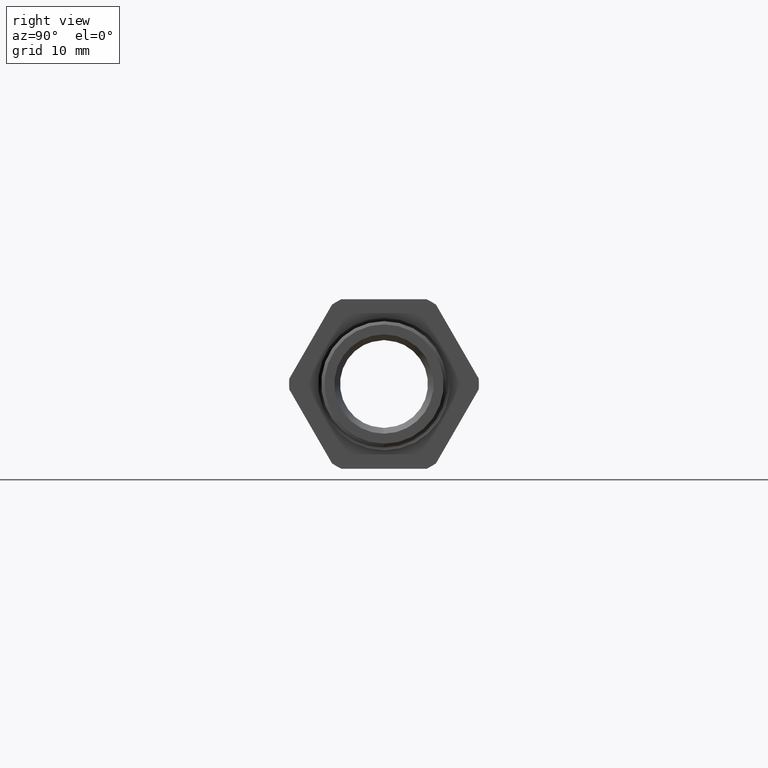
[diagram: clean part render]
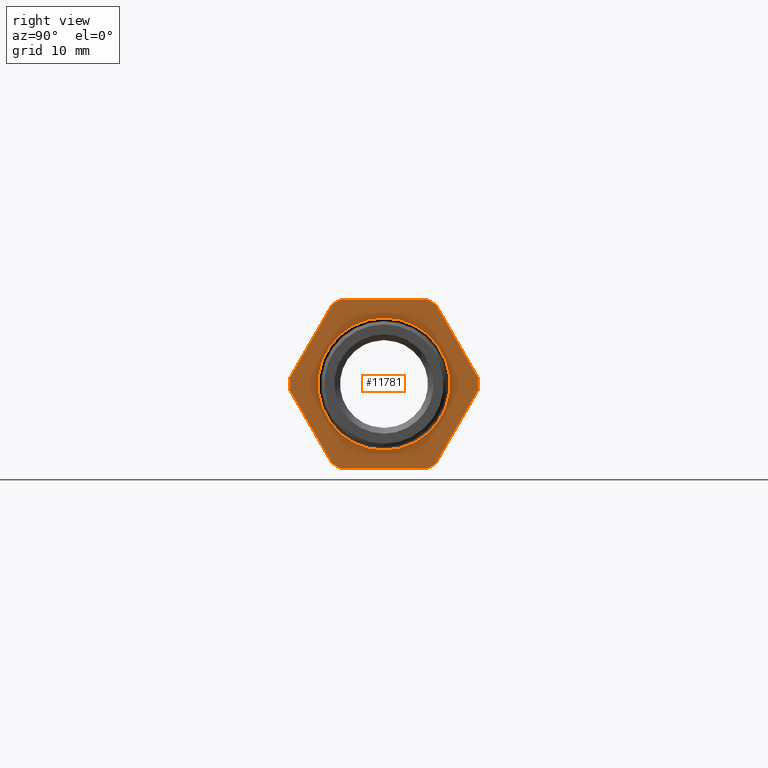
[diagram: same view with one face highlighted and labeled with its STEP entity id]
A machine part, right view. The second image highlights one B-rep face of the part: STEP entity #11781.
In plain terms, the highlighted planar face has unit normal (-1, 0, 0).
Its self-contained STEP definition (entity closure, byte-faithful):
#126 = EDGE_CURVE ( 'NONE', #206, #131, #1429, .T. ) ;
#131 = VERTEX_POINT ( 'NONE', #1424 ) ;
#206 = VERTEX_POINT ( 'NONE', #1459 ) ;
#233 = EDGE_CURVE ( 'NONE', #131, #206, #1450, .T. ) ;
#1424 = CARTESIAN_POINT ( 'NONE',  ( 7.329259376520189700E-017, 5.062129959158587600E-017, -0.4133542799999999600 ) ) ;
#1425 = DIRECTION ( 'NONE',  ( 0.0000000000000000000, 0.0000000000000000000, 1.000000000000000000 ) ) ;
#1426 = DIRECTION ( 'NONE',  ( -1.000000000000000000, 0.0000000000000000000, 0.0000000000000000000 ) ) ;
#1427 = CARTESIAN_POINT ( 'NONE',  ( 7.329259376520189700E-017, 0.0000000000000000000, 0.0000000000000000000 ) ) ;
#1428 = AXIS2_PLACEMENT_3D ( 'NONE', #1427, #1426, #1425 ) ;
#1429 = CIRCLE ( 'NONE', #1428, 0.4133542799999999600 ) ;
#1447 = DIRECTION ( 'NONE',  ( 0.0000000000000000000, 0.0000000000000000000, 1.000000000000000000 ) ) ;
#1448 = DIRECTION ( 'NONE',  ( -1.000000000000000000, 0.0000000000000000000, 0.0000000000000000000 ) ) ;
#1449 = AXIS2_PLACEMENT_3D ( 'NONE', #1455, #1448, #1447 ) ;
#1450 = CIRCLE ( 'NONE', #1449, 0.4133542799999999600 ) ;
#1455 = CARTESIAN_POINT ( 'NONE',  ( 7.329259376520189700E-017, 0.0000000000000000000, 0.0000000000000000000 ) ) ;
#1459 = CARTESIAN_POINT ( 'NONE',  ( 7.329259376520189700E-017, 0.0000000000000000000, 0.4133542799999999600 ) ) ;
#10822 = DIRECTION ( 'NONE',  ( 0.0000000000000000000, 0.0000000000000000000, 1.000000000000000000 ) ) ;
#10823 = DIRECTION ( 'NONE',  ( -1.000000000000000000, 0.0000000000000000000, 0.0000000000000000000 ) ) ;
#10824 = CARTESIAN_POINT ( 'NONE',  ( 0.0000000000000000000, 0.0000000000000000000, 0.0000000000000000000 ) ) ;
#10825 = AXIS2_PLACEMENT_3D ( 'NONE', #10824, #10823, #10822 ) ;
#10826 = CIRCLE ( 'NONE', #10825, 0.5936000000000001300 ) ;
#10877 = CARTESIAN_POINT ( 'NONE',  ( 0.0000000000000000000, 0.2673218285138722600, 0.5299999999999999200 ) ) ;
#10878 = CIRCLE ( 'NONE', #10939, 0.5936000000000001300 ) ;
#10879 = DIRECTION ( 'NONE',  ( 0.0000000000000000000, -1.000000000000000000, 0.0000000000000000000 ) ) ;
#10880 = VECTOR ( 'NONE', #10879, 39.37007874015748100 ) ;
#10881 = CARTESIAN_POINT ( 'NONE',  ( 0.0000000000000000000, 0.2673218285138724300, 0.5299999999999999200 ) ) ;
#10882 = LINE ( 'NONE', #10881, #10880 ) ;
#10883 = CARTESIAN_POINT ( 'NONE',  ( 0.0000000000000000000, -0.2673218285138724300, 0.5299999999999999200 ) ) ;
#10884 = DIRECTION ( 'NONE',  ( 0.0000000000000000000, 0.0000000000000000000, 1.000000000000000000 ) ) ;
#10885 = DIRECTION ( 'NONE',  ( -1.000000000000000000, 0.0000000000000000000, 0.0000000000000000000 ) ) ;
#10886 = CARTESIAN_POINT ( 'NONE',  ( 0.0000000000000000000, 0.0000000000000000000, 0.0000000000000000000 ) ) ;
#10887 = AXIS2_PLACEMENT_3D ( 'NONE', #10886, #10885, #10884 ) ;
#10888 = CIRCLE ( 'NONE', #10887, 0.5936000000000001300 ) ;
#10889 = CARTESIAN_POINT ( 'NONE',  ( 0.0000000000000000000, -0.3253325497488163700, 0.4965074944791205700 ) ) ;
#10890 = DIRECTION ( 'NONE',  ( 0.0000000000000000000, -0.5000000000000003300, -0.8660254037844383700 ) ) ;
#10891 = VECTOR ( 'NONE', #10890, 39.37007874015748100 ) ;
#10892 = CARTESIAN_POINT ( 'NONE',  ( 0.0000000000000000000, -0.3253325497488163700, 0.4965074944791205700 ) ) ;
#10893 = LINE ( 'NONE', #10892, #10891 ) ;
#10894 = CARTESIAN_POINT ( 'NONE',  ( 0.0000000000000000000, -0.5926543782626886300, 0.03349250552087959500 ) ) ;
#10895 = DIRECTION ( 'NONE',  ( 0.0000000000000000000, 0.0000000000000000000, 1.000000000000000000 ) ) ;
#10896 = DIRECTION ( 'NONE',  ( -1.000000000000000000, 0.0000000000000000000, 0.0000000000000000000 ) ) ;
#10897 = CARTESIAN_POINT ( 'NONE',  ( 0.0000000000000000000, 0.0000000000000000000, 0.0000000000000000000 ) ) ;
#10898 = AXIS2_PLACEMENT_3D ( 'NONE', #10897, #10896, #10895 ) ;
#10899 = CIRCLE ( 'NONE', #10898, 0.5936000000000001300 ) ;
#10908 = CARTESIAN_POINT ( 'NONE',  ( 0.0000000000000000000, -0.2673218285138724300, -0.5299999999999999200 ) ) ;
#10909 = LINE ( 'NONE', #10908, #10971 ) ;
#10925 = DIRECTION ( 'NONE',  ( 0.0000000000000000000, -0.5000000000000000000, 0.8660254037844386000 ) ) ;
#10926 = VECTOR ( 'NONE', #10925, 39.37007874015748900 ) ;
#10927 = CARTESIAN_POINT ( 'NONE',  ( 0.0000000000000000000, 0.5926543782626886300, 0.03349250552087918600 ) ) ;
#10932 = LINE ( 'NONE', #10927, #10926 ) ;
#10935 = CARTESIAN_POINT ( 'NONE',  ( 0.0000000000000000000, 0.3253325497488162000, 0.4965074944791207400 ) ) ;
#10936 = DIRECTION ( 'NONE',  ( 0.0000000000000000000, 0.0000000000000000000, 1.000000000000000000 ) ) ;
#10937 = DIRECTION ( 'NONE',  ( -1.000000000000000000, 0.0000000000000000000, 0.0000000000000000000 ) ) ;
#10938 = CARTESIAN_POINT ( 'NONE',  ( 0.0000000000000000000, 0.0000000000000000000, 0.0000000000000000000 ) ) ;
#10939 = AXIS2_PLACEMENT_3D ( 'NONE', #10938, #10937, #10936 ) ;
#10969 = CARTESIAN_POINT ( 'NONE',  ( 0.0000000000000000000, -0.2673218285138723200, -0.5299999999999999200 ) ) ;
#10970 = DIRECTION ( 'NONE',  ( 0.0000000000000000000, 1.000000000000000000, 0.0000000000000000000 ) ) ;
#10971 = VECTOR ( 'NONE', #10970, 39.37007874015748100 ) ;
#11067 = CARTESIAN_POINT ( 'NONE',  ( 0.0000000000000000000, 0.2673218285138724300, -0.5299999999999999200 ) ) ;
#11068 = CARTESIAN_POINT ( 'NONE',  ( 0.0000000000000000000, 0.5926543782626886300, 0.03349250552087920000 ) ) ;
#11069 = CARTESIAN_POINT ( 'NONE',  ( 0.0000000000000000000, 0.3253325497488163100, -0.4965074944791206800 ) ) ;
#11093 = DIRECTION ( 'NONE',  ( -1.000000000000000000, 0.0000000000000000000, 0.0000000000000000000 ) ) ;
#11094 = CARTESIAN_POINT ( 'NONE',  ( 7.329259376520189700E-017, 0.5936000000000001300, 0.0000000000000000000 ) ) ;
#11095 = AXIS2_PLACEMENT_3D ( 'NONE', #11094, #11093, #11151 ) ;
#11096 = PLANE ( 'NONE',  #11095 ) ;
#11097 = FACE_OUTER_BOUND ( 'NONE', #11766, .T. ) ;
#11098 = FACE_BOUND ( 'NONE', #11763, .T. ) ;
#11099 = DIRECTION ( 'NONE',  ( 0.0000000000000000000, 0.5000000000000001100, -0.8660254037844384900 ) ) ;
#11100 = VECTOR ( 'NONE', #11099, 39.37007874015748900 ) ;
#11101 = CARTESIAN_POINT ( 'NONE',  ( 0.0000000000000000000, -0.5926543782626886300, -0.03349250552087942200 ) ) ;
#11102 = LINE ( 'NONE', #11101, #11100 ) ;
#11111 = CARTESIAN_POINT ( 'NONE',  ( 0.0000000000000000000, -0.5926543782626886300, -0.03349250552087938700 ) ) ;
#11112 = CARTESIAN_POINT ( 'NONE',  ( 0.0000000000000000000, -0.3253325497488162000, -0.4965074944791207400 ) ) ;
#11123 = DIRECTION ( 'NONE',  ( 0.0000000000000000000, 0.0000000000000000000, 1.000000000000000000 ) ) ;
#11124 = DIRECTION ( 'NONE',  ( -1.000000000000000000, 0.0000000000000000000, 0.0000000000000000000 ) ) ;
#11125 = CARTESIAN_POINT ( 'NONE',  ( 0.0000000000000000000, 0.0000000000000000000, 0.0000000000000000000 ) ) ;
#11126 = AXIS2_PLACEMENT_3D ( 'NONE', #11125, #11124, #11123 ) ;
#11127 = CIRCLE ( 'NONE', #11126, 0.5936000000000001300 ) ;
#11128 = CARTESIAN_POINT ( 'NONE',  ( 0.0000000000000000000, 0.5926543782626886300, -0.03349250552087901200 ) ) ;
#11129 = DIRECTION ( 'NONE',  ( 0.0000000000000000000, 0.0000000000000000000, 1.000000000000000000 ) ) ;
#11130 = DIRECTION ( 'NONE',  ( -1.000000000000000000, 0.0000000000000000000, 0.0000000000000000000 ) ) ;
#11131 = CARTESIAN_POINT ( 'NONE',  ( 0.0000000000000000000, 0.0000000000000000000, 0.0000000000000000000 ) ) ;
#11132 = AXIS2_PLACEMENT_3D ( 'NONE', #11131, #11130, #11129 ) ;
#11133 = CIRCLE ( 'NONE', #11132, 0.5936000000000001300 ) ;
#11134 = DIRECTION ( 'NONE',  ( 0.0000000000000000000, 0.4999999999999998300, 0.8660254037844386000 ) ) ;
#11143 = VECTOR ( 'NONE', #11134, 39.37007874015748900 ) ;
#11144 = CARTESIAN_POINT ( 'NONE',  ( 0.0000000000000000000, 0.3253325497488162000, -0.4965074944791207400 ) ) ;
#11145 = LINE ( 'NONE', #11144, #11143 ) ;
#11151 = DIRECTION ( 'NONE',  ( 0.0000000000000000000, 0.0000000000000000000, 1.000000000000000000 ) ) ;
#11261 = ORIENTED_EDGE ( 'NONE', *, *, #11507, .F. ) ;
#11507 = EDGE_CURVE ( 'NONE', #11778, #11536, #10826, .T. ) ;
#11534 = EDGE_CURVE ( 'NONE', #11567, #11777, #10899, .T. ) ;
#11535 = ORIENTED_EDGE ( 'NONE', *, *, #11534, .F. ) ;
#11536 = VERTEX_POINT ( 'NONE', #10894 ) ;
#11537 = ORIENTED_EDGE ( 'NONE', *, *, #11538, .T. ) ;
#11538 = EDGE_CURVE ( 'NONE', #11539, #11536, #10893, .T. ) ;
#11539 = VERTEX_POINT ( 'NONE', #10889 ) ;
#11540 = EDGE_CURVE ( 'NONE', #11539, #11541, #10888, .T. ) ;
#11541 = VERTEX_POINT ( 'NONE', #10883 ) ;
#11542 = ORIENTED_EDGE ( 'NONE', *, *, #11540, .F. ) ;
#11543 = EDGE_CURVE ( 'NONE', #11545, #11541, #10882, .T. ) ;
#11544 = ORIENTED_EDGE ( 'NONE', *, *, #11543, .T. ) ;
#11545 = VERTEX_POINT ( 'NONE', #10877 ) ;
#11546 = EDGE_CURVE ( 'NONE', #11545, #11548, #10878, .T. ) ;
#11547 = ORIENTED_EDGE ( 'NONE', *, *, #11546, .F. ) ;
#11548 = VERTEX_POINT ( 'NONE', #10935 ) ;
#11550 = EDGE_CURVE ( 'NONE', #11771, #11548, #10932, .T. ) ;
#11551 = ORIENTED_EDGE ( 'NONE', *, *, #11550, .T. ) ;
#11565 = EDGE_CURVE ( 'NONE', #11567, #11772, #10909, .T. ) ;
#11566 = ORIENTED_EDGE ( 'NONE', *, *, #11565, .T. ) ;
#11567 = VERTEX_POINT ( 'NONE', #10969 ) ;
#11763 = EDGE_LOOP ( 'NONE', ( #11765, #11764 ) ) ;
#11764 = ORIENTED_EDGE ( 'NONE', *, *, #233, .T. ) ;
#11765 = ORIENTED_EDGE ( 'NONE', *, *, #126, .T. ) ;
#11766 = EDGE_LOOP ( 'NONE', ( #11779, #11535, #11566, #11790, #11786, #11789, #11551, #11547, #11544, #11542, #11537, #11261 ) ) ;
#11769 = VERTEX_POINT ( 'NONE', #11069 ) ;
#11771 = VERTEX_POINT ( 'NONE', #11068 ) ;
#11772 = VERTEX_POINT ( 'NONE', #11067 ) ;
#11777 = VERTEX_POINT ( 'NONE', #11112 ) ;
#11778 = VERTEX_POINT ( 'NONE', #11111 ) ;
#11779 = ORIENTED_EDGE ( 'NONE', *, *, #11780, .T. ) ;
#11780 = EDGE_CURVE ( 'NONE', #11778, #11777, #11102, .T. ) ;
#11781 = ADVANCED_FACE ( 'NONE', ( #11098, #11097 ), #11096, .F. ) ;
#11785 = EDGE_CURVE ( 'NONE', #11769, #11788, #11145, .T. ) ;
#11786 = ORIENTED_EDGE ( 'NONE', *, *, #11785, .T. ) ;
#11787 = EDGE_CURVE ( 'NONE', #11771, #11788, #11133, .T. ) ;
#11788 = VERTEX_POINT ( 'NONE', #11128 ) ;
#11789 = ORIENTED_EDGE ( 'NONE', *, *, #11787, .F. ) ;
#11790 = ORIENTED_EDGE ( 'NONE', *, *, #11791, .F. ) ;
#11791 = EDGE_CURVE ( 'NONE', #11769, #11772, #11127, .T. ) ;